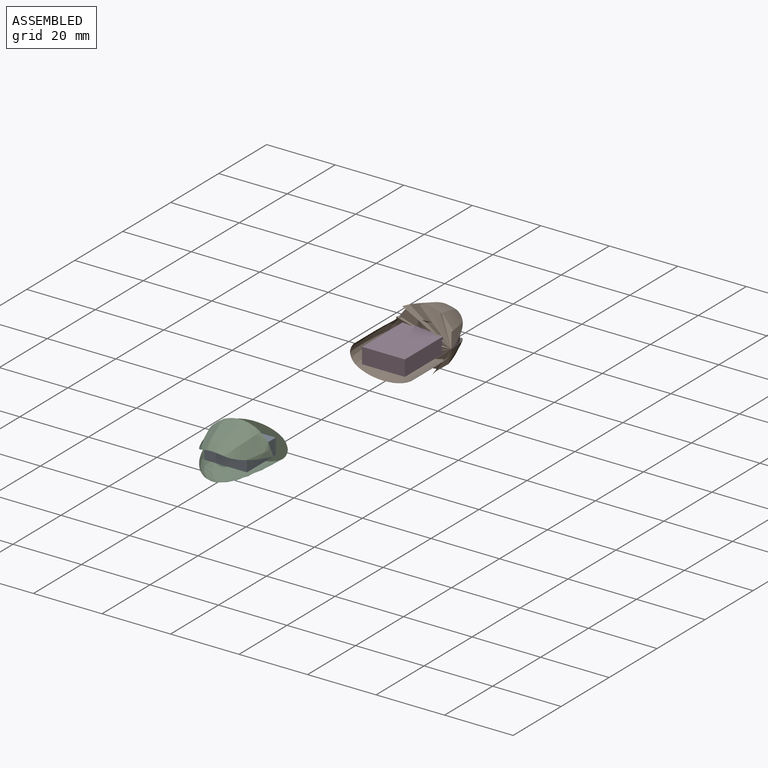
[diagram: assembled view]
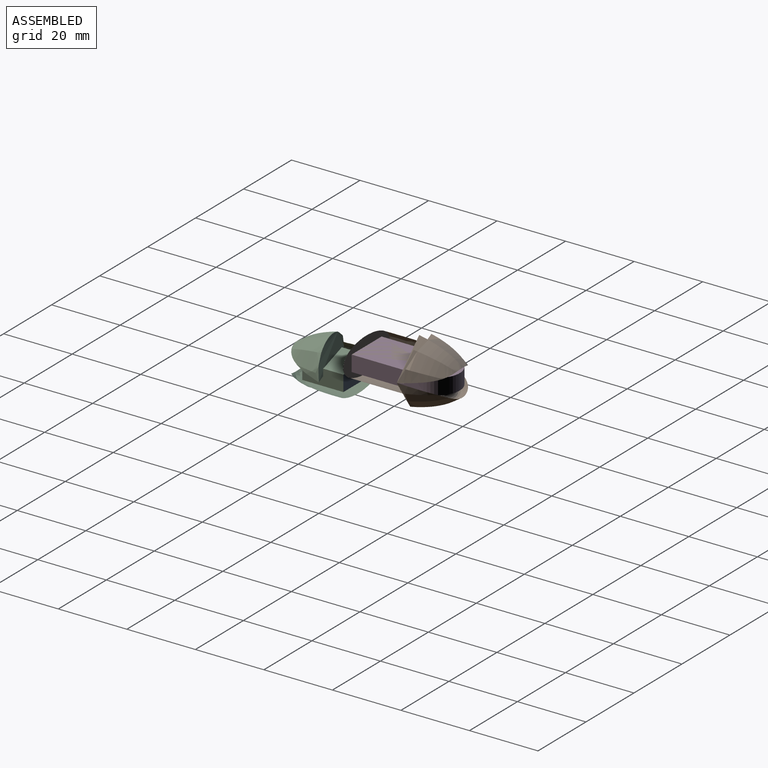
[diagram: assembled view, second angle]
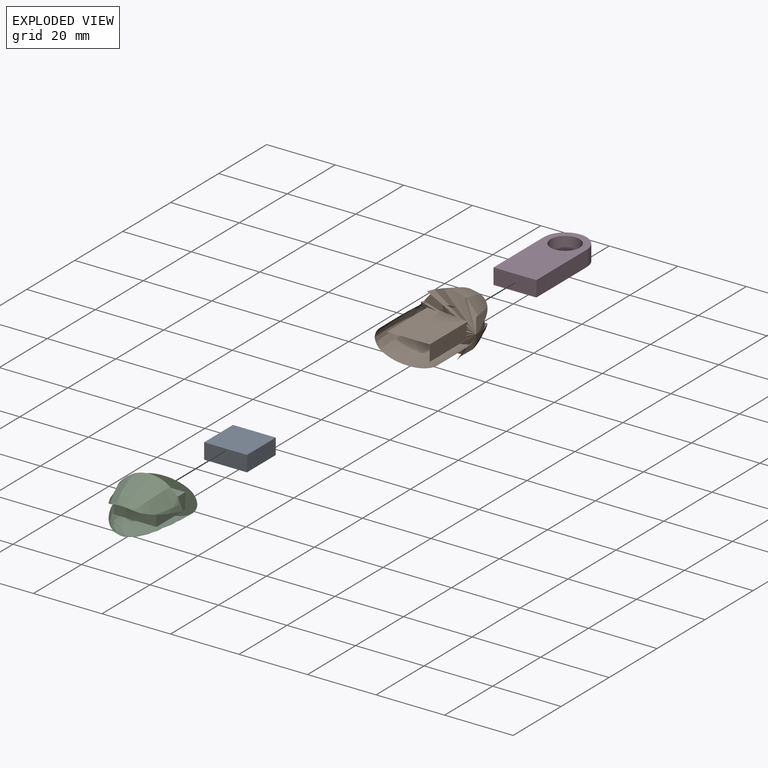
[diagram: exploded view]
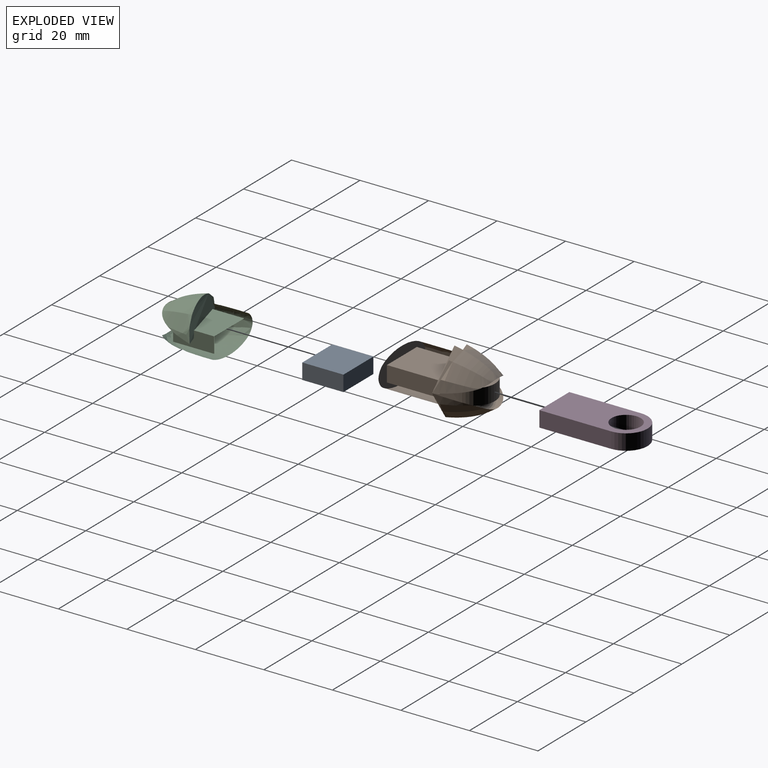
[diagram: exploded view, second angle]
ASSEMBLY  parts=4 mates=2
PART A: 6 faces, bbox 12.5x12x4.6 mm
  f0: plane 12.5x4.6mm, normal (0,-1,0), area 57.5mm2, adj f1,f2,f3,f4
  f1: plane 12.5x12mm, normal (0,0,1), area 150mm2, adj f0,f3,f4,f5
  f2: plane 12.5x12mm, normal (0,0,-1), area 150mm2, adj f0,f3,f4,f5
  f3: plane 12x4.6mm, normal (1,0,0), area 55.2mm2, adj f0,f1,f2,f5
  f4: plane 12x4.6mm, normal (-1,0,0), area 55.2mm2, adj f0,f1,f2,f5
  f5: plane 12.5x4.6mm, normal (0,1,0), area 57.5mm2, adj f1,f2,f3,f4
PART B: 17 faces, bbox 20.3x31.8x18.3 mm
  f0: cylinder r=4.25mm len=8.5mm, axis (0,0,1), area 29.8mm2, adj f10,f11,f16
  f1: extruded ~19.15x16.96mm, area 302.8mm2, adj f4,f5,f11
  f2: extruded ~19.15x16.96mm, area 302.8mm2, adj f4,f6,f9
  f3: revolved ~18.27x18.27mm, area 140.8mm2, adj f5,f6
  f4: plane 19.6x10.05mm, normal (0,-1,0), area 97.6mm2, adj f1,f2,f5,f6,f12,f13,f15,f16
  f5: bspline ~29.8x20.27mm, area 217.1mm2, adj f1,f3,f4,f6,f10
  f6: bspline ~29.8x20.27mm, area 207.9mm2, adj f2,f3,f4,f5,f8
  f7: cylinder r=4.25mm len=8.5mm, axis (0,0,1), area 29.8mm2, adj f8,f9,f15
  f8: bspline ~11.68x8.36mm, area 40.2mm2, adj f6,f7,f9
  f9: bspline ~10.82x4.83mm, area 19.5mm2, adj f2,f7,f8
  f10: bspline ~11.68x8.36mm, area 40.2mm2, adj f0,f5,f11
  f11: bspline ~10.82x4.83mm, area 19.5mm2, adj f0,f1,f10
  f12: plane 20.95x4.6mm, normal (1,0,0), area 96.4mm2, adj f4,f14,f15,f16
  f13: plane 20.95x4.6mm, normal (-1,0,0), area 96.4mm2, adj f4,f14,f15,f16
  f14: cylinder r=6.25mm len=12.5mm, axis (0,0,-1), area 90.3mm2, adj f12,f13,f15,f16
  f15: plane 27.2x12.5mm, normal (0,0,-1), area 266.5mm2, adj f4,f7,f12,f13,f14
  f16: plane 27.2x12.5mm, normal (0,0,1), area 266.5mm2, adj f0,f4,f12,f13,f14
PART C: 11 faces, bbox 20.1x22.8x18.3 mm
  f0: extruded ~15.97x15.27mm, area 169.7mm2, adj f3,f5
  f1: extruded ~15.97x15.27mm, area 169.7mm2, adj f3,f4
  f2: revolved ~18.26x18.24mm, area 140.9mm2, adj f4,f5
  f3: plane 19.61x10.05mm, normal (0,1,0), area 97.6mm2, adj f0,f1,f4,f5,f6,f7,f8,f9
  f4: bspline ~20.74x20.08mm, area 177mm2, adj f1,f2,f3,f5
  f5: bspline ~20.74x20.08mm, area 177mm2, adj f0,f2,f3,f4
  f6: plane 12x4.6mm, normal (1,0,0), area 55.2mm2, adj f3,f8,f9,f10
  f7: plane 12x4.6mm, normal (-1,0,0), area 55.2mm2, adj f3,f8,f9,f10
  f8: plane 12.5x12mm, normal (0,0,-1), area 150mm2, adj f3,f6,f7,f10
  f9: plane 12.5x12mm, normal (0,0,1), area 150mm2, adj f3,f6,f7,f10
  f10: plane 12.5x4.6mm, normal (0,1,0), area 57.5mm2, adj f6,f7,f8,f9
PART D: 7 faces, bbox 12.5x27.2x4.6 mm
  f0: plane 20.95x4.6mm, normal (-1,0,0), area 96.4mm2, adj f2,f3,f4,f6
  f1: plane 20.95x4.6mm, normal (1,0,0), area 96.4mm2, adj f2,f3,f4,f6
  f2: plane 27.2x12.5mm, normal (0,0,1), area 266.5mm2, adj f0,f1,f4,f5,f6
  f3: plane 27.2x12.5mm, normal (0,0,-1), area 266.5mm2, adj f0,f1,f4,f5,f6
  f4: cylinder r=6.25mm len=12.5mm, axis (0,0,-1), area 90.3mm2, adj f0,f1,f2,f3
  f5: cylinder r=4.25mm len=8.5mm, axis (0,0,-1), area 122.8mm2, adj f2,f3
  f6: plane 12.5x4.6mm, normal (0,-1,0), area 57.5mm2, adj f0,f1,f2,f3
PLACE A t=(21.18,-8.66,9.52)mm
PLACE B t=(45.34,-5.3,31.51)mm
PLACE C t=(21.18,-24.61,11.82)mm
PLACE D t=(45.34,10.65,29.21)mm
MATE ball A.f5 <-> C.f3  axis (0,1,0) through (21.18,-29.61,11.82)mm
MATE ball D.f6 <-> B.f4  axis (0,-1,0) through (45.34,-10.3,31.51)mm
